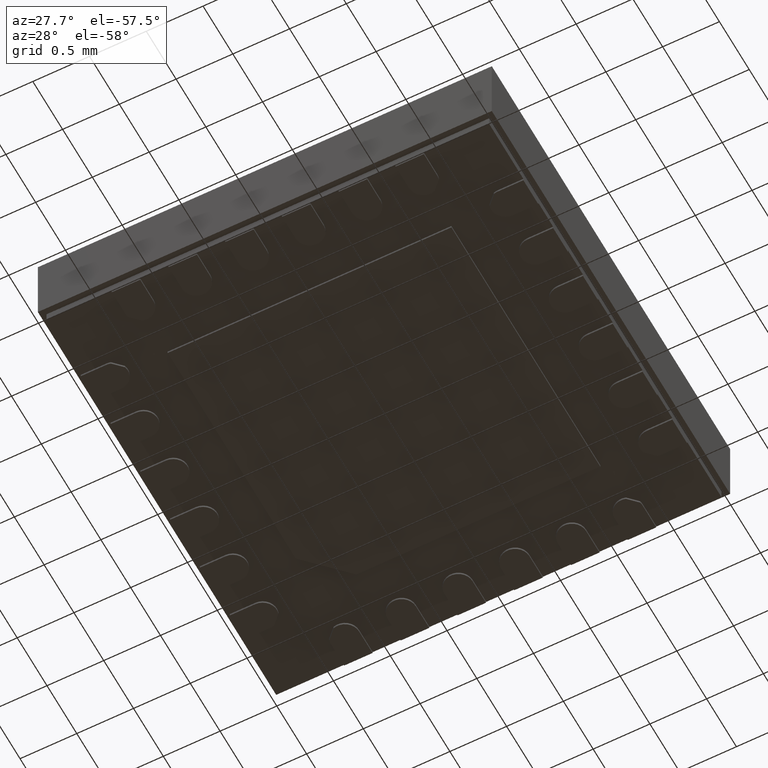
[diagram: clean part render]
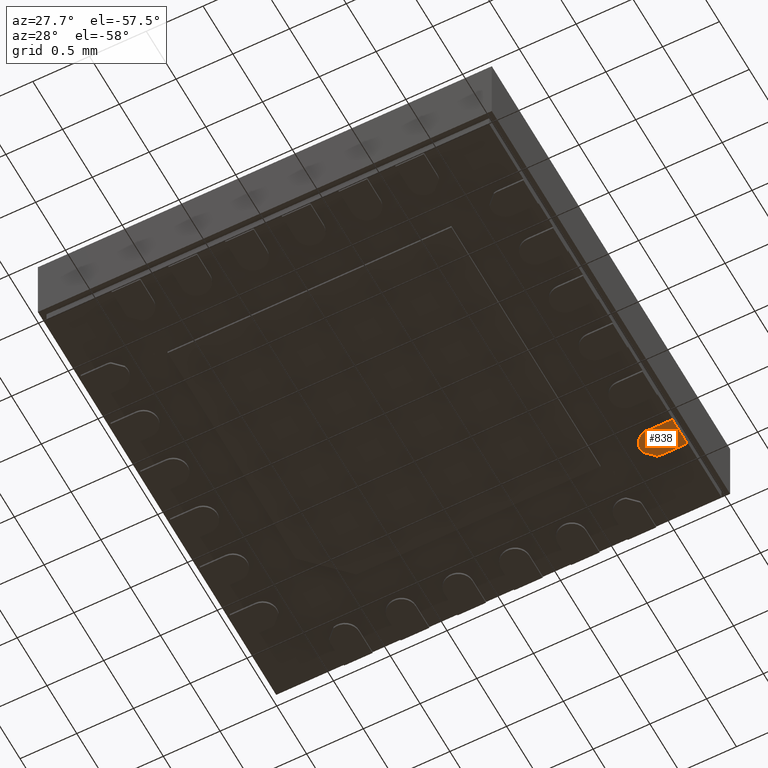
[diagram: same view with one face highlighted and labeled with its STEP entity id]
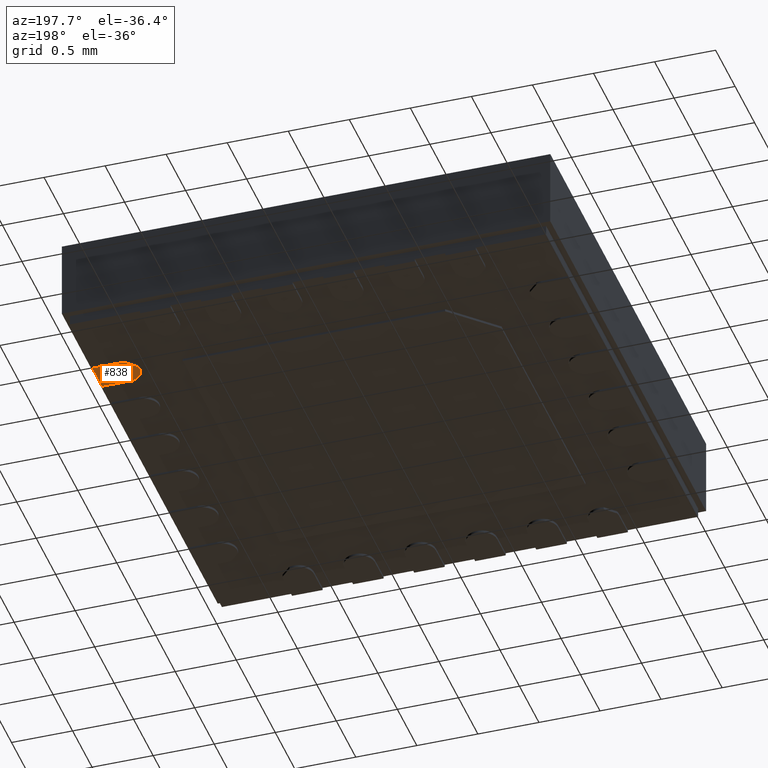
[diagram: same view with one face highlighted and labeled with its STEP entity id]
A machine part, auxiliary view. The second image highlights one B-rep face of the part: STEP entity #838.
A second angle (auxiliary view) of the same face is appended — the face is thin or edge-on in the first view.
In plain terms, the highlighted planar face has unit normal (0, 0, 1).
Its self-contained STEP definition (entity closure, byte-faithful):
#838=ADVANCED_FACE('',(#1874),#1875,.F.);
#1874=FACE_OUTER_BOUND('',#3174,.T.);
#1875=PLANE('',#3175);
#3174=EDGE_LOOP('',(#5254,#5255,#5256,#5257,#5258,#5259));
#3175=AXIS2_PLACEMENT_3D('',#5260,#5261,#5262);
#5254=ORIENTED_EDGE('',*,*,#8050,.T.);
#5255=ORIENTED_EDGE('',*,*,#8056,.F.);
#5256=ORIENTED_EDGE('',*,*,#8063,.F.);
#5257=ORIENTED_EDGE('',*,*,#8067,.F.);
#5258=ORIENTED_EDGE('',*,*,#8071,.F.);
#5259=ORIENTED_EDGE('',*,*,#8073,.F.);
#5260=CARTESIAN_POINT('',(1.81024992441637,1.26052377810751,0.0));
#5261=DIRECTION('',(0.0,0.0,1.0));
#5262=DIRECTION('',(1.0,0.0,0.0));
#8050=EDGE_CURVE('',#9719,#9717,#9720,.T.);
#8056=EDGE_CURVE('',#9727,#9717,#9729,.T.);
#8063=EDGE_CURVE('',#9737,#9727,#9739,.T.);
#8067=EDGE_CURVE('',#9743,#9737,#9745,.T.);
#8071=EDGE_CURVE('',#9749,#9743,#9751,.T.);
#8073=EDGE_CURVE('',#9719,#9749,#9753,.T.);
#9717=VERTEX_POINT('',#12133);
#9719=VERTEX_POINT('',#12136);
#9720=LINE('',#12137,#12138);
#9727=VERTEX_POINT('',#12148);
#9729=LINE('',#12151,#12152);
#9737=VERTEX_POINT('',#12162);
#9739=CIRCLE('',#12165,0.124999999999998);
#9743=VERTEX_POINT('',#12170);
#9745=LINE('',#12173,#12174);
#9749=VERTEX_POINT('',#12178);
#9751=CIRCLE('',#12181,0.125000000000002);
#9753=LINE('',#12183,#12184);
#12133=CARTESIAN_POINT('',(1.93878337008871,1.13621654528177,0.0));
#12136=CARTESIAN_POINT('',(1.93878337008871,1.38621654528183,0.0));
#12137=CARTESIAN_POINT('',(1.93878337008871,0.635870161693802,0.0));
#12138=VECTOR('',#14541,1.0);
#12148=CARTESIAN_POINT('',(1.71378337008698,1.13621654528177,0.0));
#12151=CARTESIAN_POINT('',(1.71378337008698,1.13621654528177,0.0));
#12152=VECTOR('',#14546,1.0);
#12162=CARTESIAN_POINT('',(1.59456833896961,1.29880346262927,0.0));
#12165=AXIS2_PLACEMENT_3D('',#14553,#14554,#14555);
#12170=CARTESIAN_POINT('',(1.67619645273962,1.38043157639923,0.0));
#12173=CARTESIAN_POINT('',(1.67619645273962,1.38043157639923,0.0));
#12174=VECTOR('',#14558,1.0);
#12178=CARTESIAN_POINT('',(1.71378337008698,1.38621654528183,0.0));
#12181=AXIS2_PLACEMENT_3D('',#14563,#14564,#14565);
#12183=CARTESIAN_POINT('',(1.98878337008867,1.38621654528183,0.0));
#12184=VECTOR('',#14566,1.0);
#14541=DIRECTION('',(0.0,-1.0,0.0));
#14546=DIRECTION('',(1.0,0.0,0.0));
#14553=CARTESIAN_POINT('',(1.71378337008698,1.26121654528183,0.0));
#14554=DIRECTION('',(0.0,0.0,1.0));
#14555=DIRECTION('',(-0.953720248938988,0.300695338779562,0.0));
#14558=DIRECTION('',(-0.707106781186794,-0.707106781186301,0.0));
#14563=CARTESIAN_POINT('',(1.71378337008698,1.26121654528183,0.0));
#14564=DIRECTION('',(0.0,0.0,1.0));
#14565=DIRECTION('',(-8.88178419700109E-15,1.0,0.0));
#14566=DIRECTION('',(-1.0,0.0,0.0));